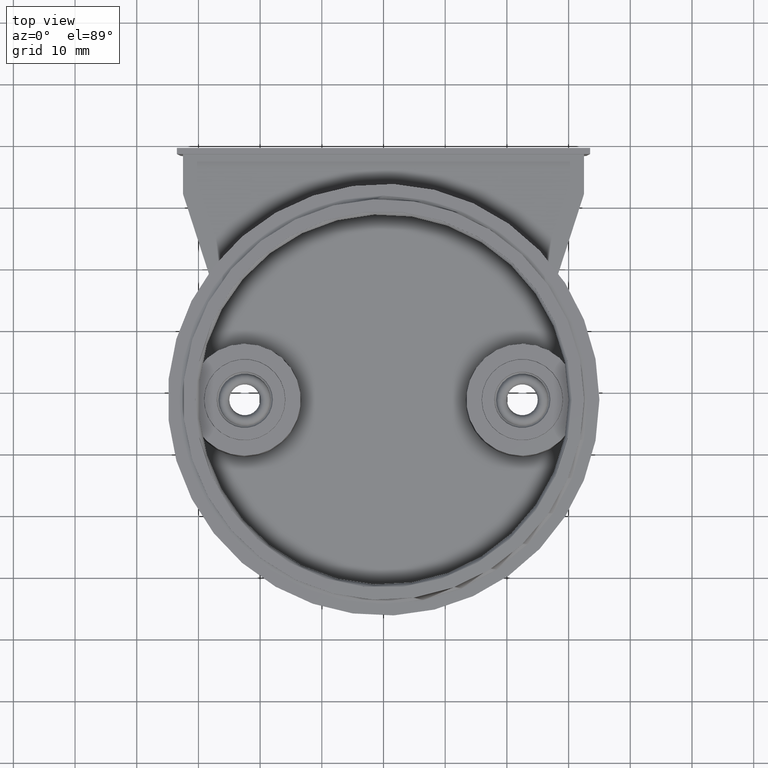
[diagram: clean part render]
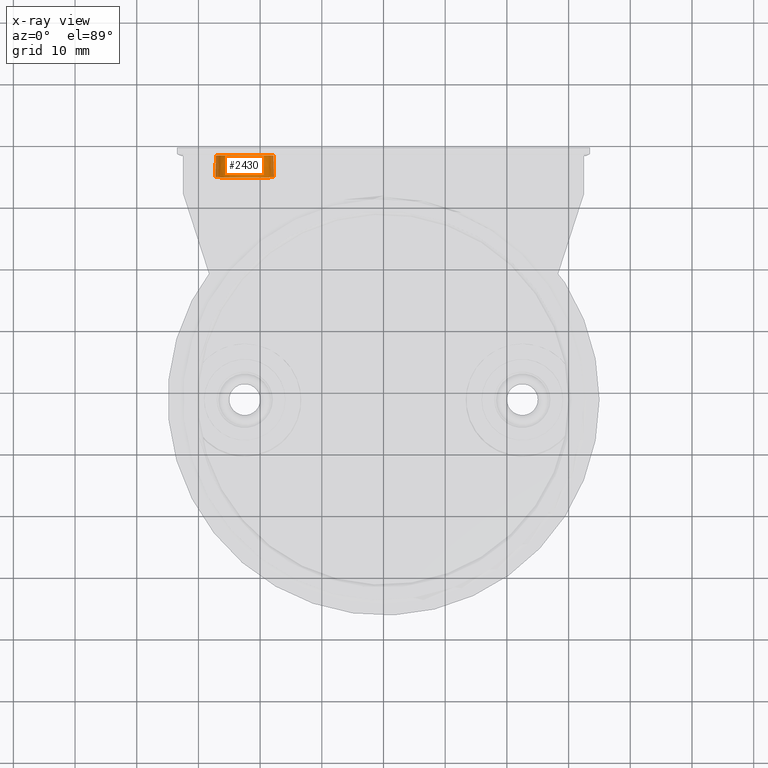
[diagram: x-ray — body ghosted, one internal face saturated and labeled with its STEP entity id]
A machine part, top view, then the same camera in x-ray: the body is ghosted and one INTERNAL B-rep face — a face not visible from any outside direction — is saturated and labeled: STEP entity #2430.
In plain terms, the highlighted conical surface has half-angle 1 deg.
Its self-contained STEP definition (entity closure, byte-faithful):
#106=CONICAL_SURFACE('',#3052,4.75,1.);
#115=ELLIPSE('',#2970,4.778693987096,4.77578204862762);
#370=CIRCLE('',#3050,4.71508987014357);
#731=EDGE_LOOP('',(#1220));
#732=EDGE_LOOP('',(#1221));
#1220=ORIENTED_EDGE('',*,*,#1743,.T.);
#1221=ORIENTED_EDGE('',*,*,#1921,.F.);
#1743=EDGE_CURVE('',#2714,#2714,#115,.T.);
#1921=EDGE_CURVE('',#2861,#2861,#370,.T.);
#2430=ADVANCED_FACE('',(#2616,#2617),#106,.T.);
#2616=FACE_BOUND('',#731,.T.);
#2617=FACE_BOUND('',#732,.T.);
#2714=VERTEX_POINT('',#4056);
#2861=VERTEX_POINT('',#5777);
#2970=AXIS2_PLACEMENT_3D('',#4055,#3346,#3347);
#3050=AXIS2_PLACEMENT_3D('',#5776,#3567,#3568);
#3052=AXIS2_PLACEMENT_3D('',#5779,#3571,#3572);
#3346=DIRECTION('',(-2.33359844615528E-013,0.999390827019096,0.034899496702501));
#3347=DIRECTION('',(-6.68255161647208E-012,-0.034899496702501,0.999390827019096));
#3567=DIRECTION('',(0.,1.,0.));
#3568=DIRECTION('',(0.,0.,-1.));
#3571=DIRECTION('',(0.,-1.,0.));
#3572=DIRECTION('',(0.,9.37474480665374E-016,1.));
#4055=CARTESIAN_POINT('',(-22.5000487211145,34.4701195572422,1.58716911756732));
#4056=CARTESIAN_POINT('',(-22.5000487211464,34.3033455421972,6.36295205340237));
#5776=CARTESIAN_POINT('',(-22.5000487211144,37.9472229619608,1.58425806630637));
#5777=CARTESIAN_POINT('',(-22.5000487211144,37.9472229619608,-3.1308318038372));
#5779=CARTESIAN_POINT('',(-22.5000487211144,35.9472229619608,1.58425806630637));